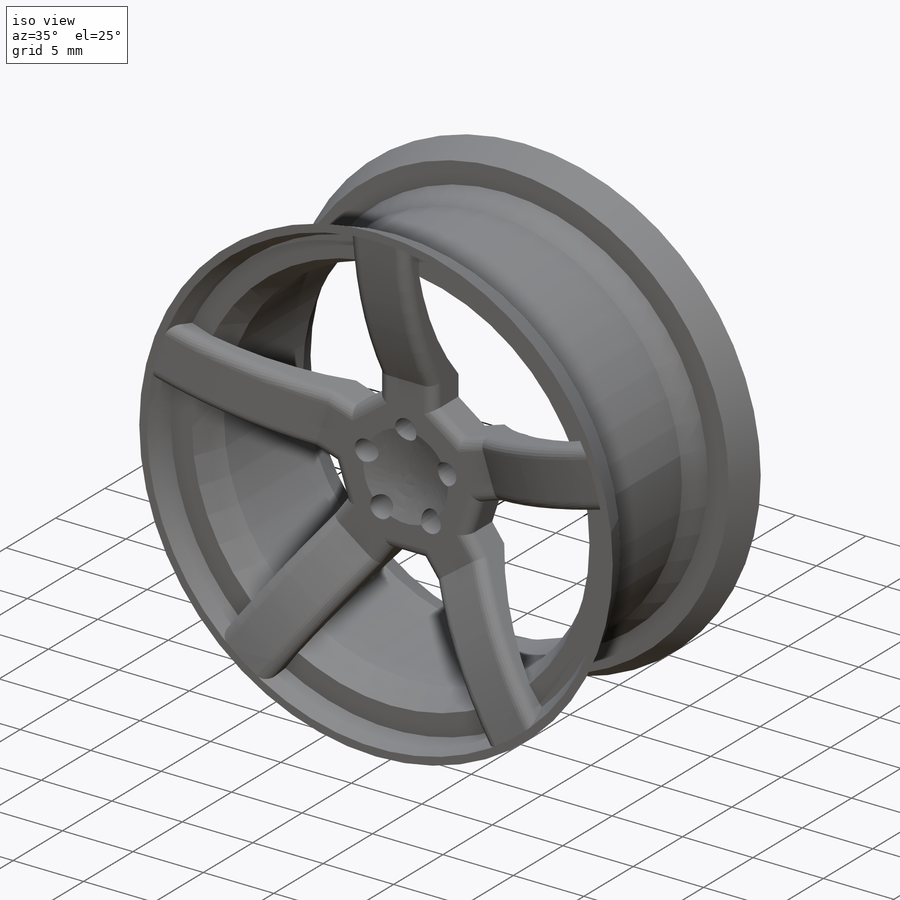
[diagram: iso view]
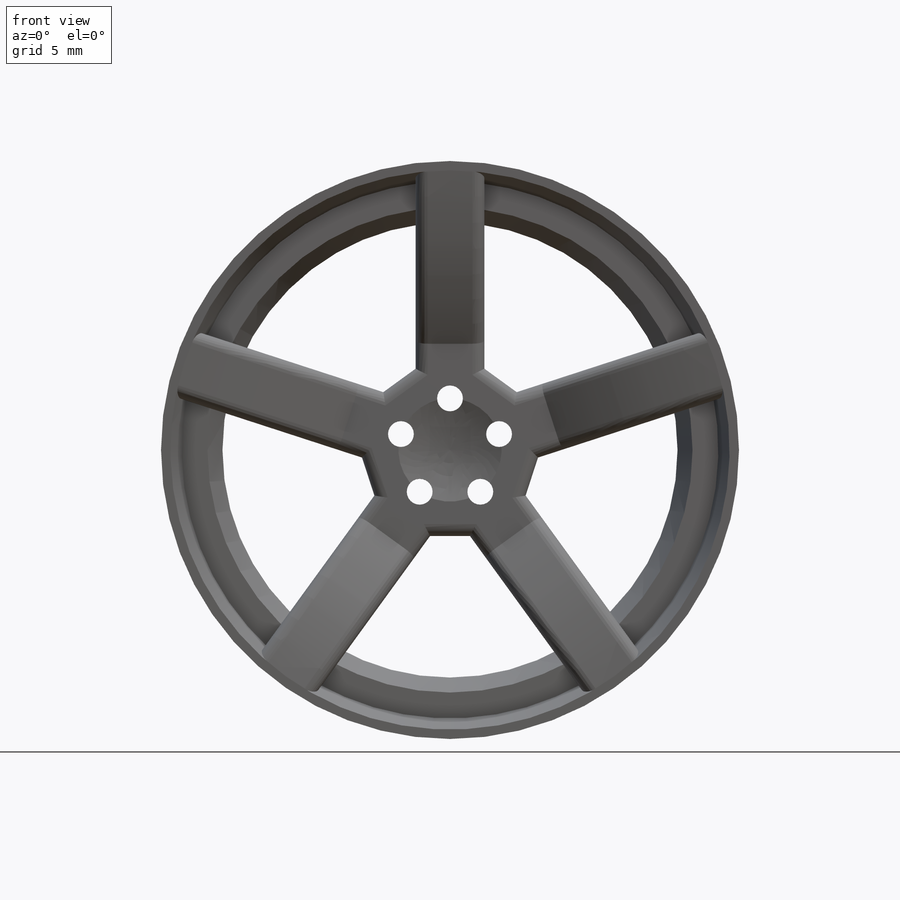
[diagram: front view]
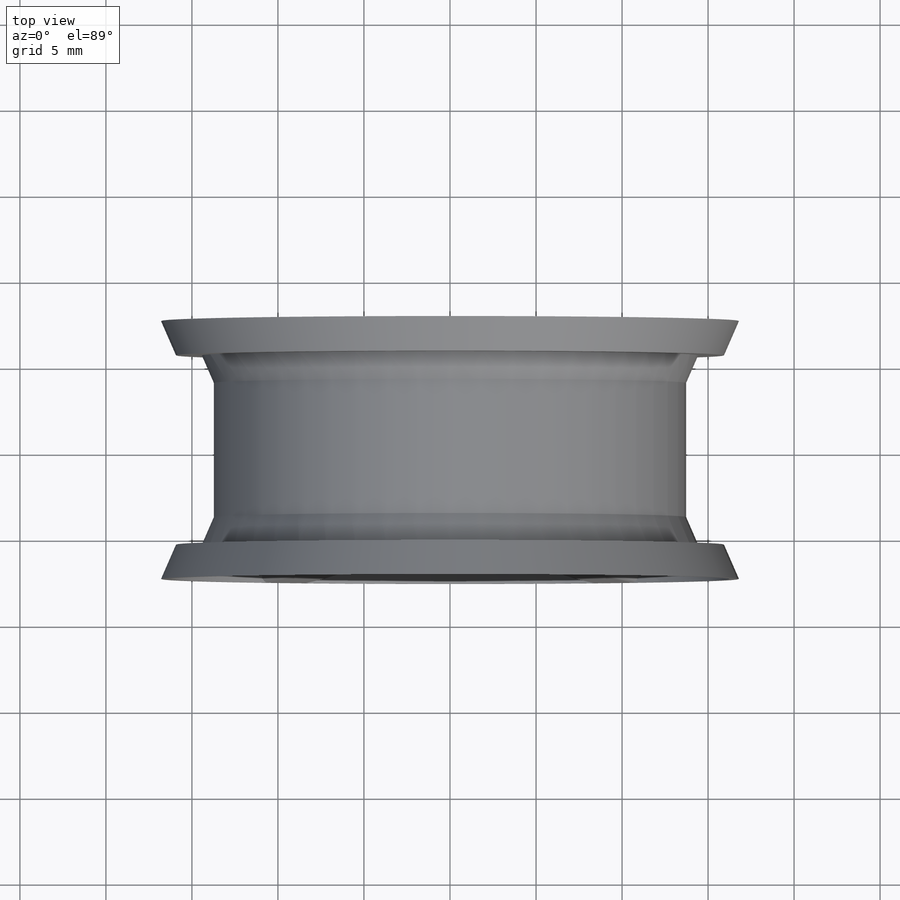
[diagram: top view]
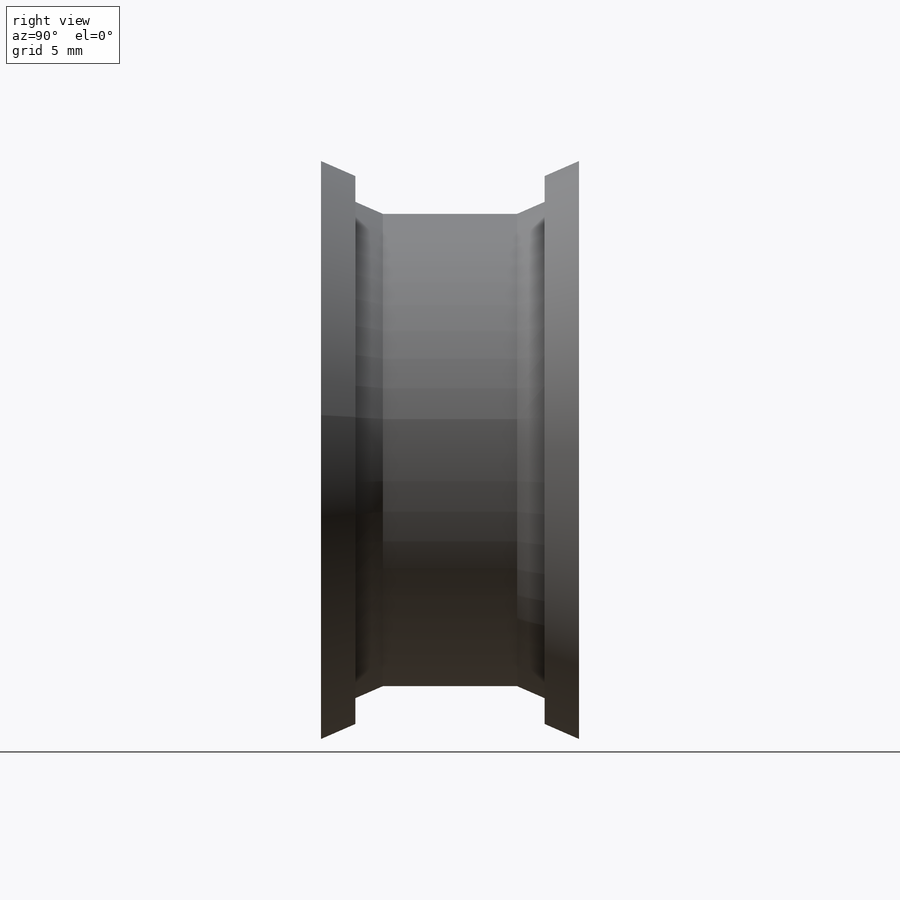
[diagram: right view]
SOLIDWORKS PART (.sldprt)
format: sldprt  version: not decoded by parser v0  size: 500,224 bytes
history: native  units: mm
features: sketch x5, plane x4, extrude x2, material x1, revolve x1, cut_extrude x1, fillet x1, pattern_circular x1, cut_revolve x1 (+10 scaffold rows collapsed)
feature tree (27):
  scaffold x10  (default folders/planes/origin — collapsed)
  material  "6061-T4 (SS)"
  plane  "前基準面"
  plane  "上基準面"
  plane  "右基準面"
  sketch  "草圖1"  dims[D2=12.0mm D3=12.0mm D4=15.0mm D5=78.0mm D6=150.0mm D7=336.0mm D1=5.0mm]
  revolve  "旋轉1"  Angle=360deg
  plane  "平面1"  Offset=30mm
  sketch  "草圖2"  dims[D1=100.0mm]
  extrude  "填料-伸長1"  Depth=25mm
  sketch  "草圖3"  dims[D1=250.0mm D2=180.0mm]
  extrude  "填料-伸長2"  Depth=40mm
  sketch  "草圖4"  dims[D1=60.0mm D2=15.0mm]
  cut_extrude  "除料-伸長1"  [1 undecoded]
  fillet  "圓角1"  Radius=7mm
  pattern_circular  "環狀複製排列1"  Count=5 Angle=360deg
  sketch  "草圖5"  dims[c1.D2=78.0mm c1.D1=6.0mm c2.D2=~121.25259mm]
  cut_revolve  "除料-旋轉1"  Angle=360deg
decode coverage: 11 of 12 modeling features carry decoded parameters
note: ~ marks probable driven/reference dimensions
note: 1 parameter value undecoded
note: suppression state not decoded; provenance and decode notes live in map.json
